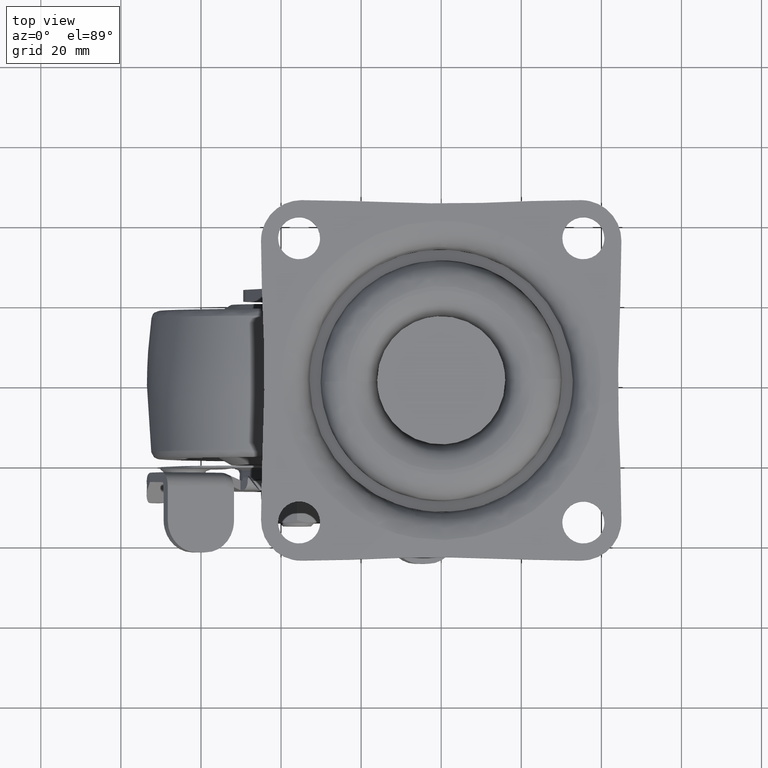
[diagram: clean part render]
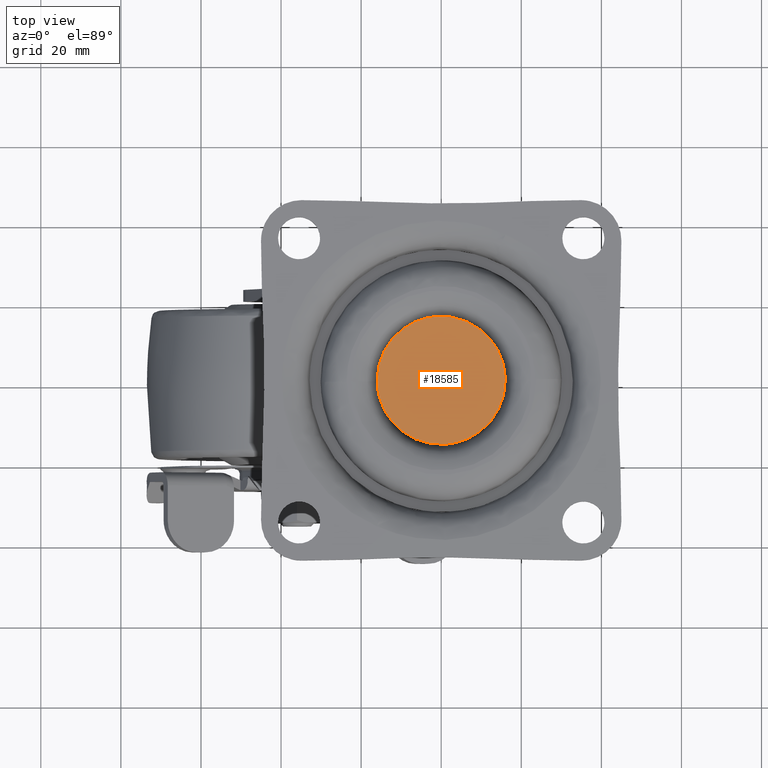
[diagram: same view with one face highlighted and labeled with its STEP entity id]
A machine part, top view. The second image highlights one B-rep face of the part: STEP entity #18585.
In plain terms, the highlighted face is a freeform B-spline surface patch.
Its self-contained STEP definition (entity closure, byte-faithful):
#18514=CARTESIAN_POINT('',(-17.598399937977788,-17.598006196946990,0.0));
#18515=CARTESIAN_POINT('',(17.598400796284679,-17.598006196946990,0.0));
#18516=CARTESIAN_POINT('',(-17.598399937977788,17.598005624742399,0.0));
#18517=CARTESIAN_POINT('',(17.598400796284679,17.598005624742399,0.0));
#18518=B_SPLINE_SURFACE_WITH_KNOTS('',1,1,((#18514,#18516),(#18515,#18517)),.UNSPECIFIED.,.F.,.F.,.U.,(2,2),(2,2),(0.0,35.196800734262467),(0.0,35.196011821689382),.UNSPECIFIED.);
#18519=CARTESIAN_POINT('',(0.976767278709986,-15.970157346850200,-4.246603E-014));
#18520=VERTEX_POINT('',#18519);
#18521=CARTESIAN_POINT('',(-16.0,0.0,0.0));
#18522=VERTEX_POINT('',#18521);
#18523=CARTESIAN_POINT('',(0.976767278709986,-15.970157346850208,-4.246603E-014));
#18524=CARTESIAN_POINT('',(0.488839522739965,-15.999999999997291,-4.185577E-014));
#18525=CARTESIAN_POINT('',(-1.613808E-013,-15.999999999997341,-4.120705E-014));
#18526=CARTESIAN_POINT('',(-16.000000000000082,-15.999999999998712,-1.997404E-014));
#18527=CARTESIAN_POINT('',(-16.0,0.0,0.0));
#18535=(BOUNDED_CURVE()B_SPLINE_CURVE(2,(#18523,#18524,#18525,#18526,#18527),.UNSPECIFIED.,.F.,.U.)B_SPLINE_CURVE_WITH_KNOTS((3,2,3),(0.739333063304002,0.750000000000000,1.0),.UNSPECIFIED.)CURVE()GEOMETRIC_REPRESENTATION_ITEM()RATIONAL_B_SPLINE_CURVE((0.976072258268473,0.987502906304919,1.0,0.707106781186548,1.0))REPRESENTATION_ITEM(''));
#18536=EDGE_CURVE('',#18520,#18522,#18535,.T.);
#18537=ORIENTED_EDGE('',*,*,#18536,.F.);
#18538=CARTESIAN_POINT('',(16.0,0.0,0.0));
#18539=VERTEX_POINT('',#18538);
#18540=CARTESIAN_POINT('',(16.0,0.0,0.0));
#18541=CARTESIAN_POINT('',(15.999999999999924,-15.051305902629883,-2.123302E-014));
#18542=CARTESIAN_POINT('',(0.976767278709986,-15.970157346850208,-4.246603E-014));
#18550=(BOUNDED_CURVE()B_SPLINE_CURVE(2,(#18540,#18541,#18542),.UNSPECIFIED.,.F.,.U.)B_SPLINE_CURVE_WITH_KNOTS((3,3),(0.500000000000000,0.739333063304002),.UNSPECIFIED.)CURVE()GEOMETRIC_REPRESENTATION_ITEM()RATIONAL_B_SPLINE_CURVE((1.0,0.719603874881628,0.976072258268473))REPRESENTATION_ITEM(''));
#18551=EDGE_CURVE('',#18539,#18520,#18550,.T.);
#18552=ORIENTED_EDGE('',*,*,#18551,.F.);
#18553=CARTESIAN_POINT('',(-0.976767278709985,15.970157346850209,-4.246603E-014));
#18554=VERTEX_POINT('',#18553);
#18555=CARTESIAN_POINT('',(-0.976767278709985,15.970157346850208,-4.246603E-014));
#18556=CARTESIAN_POINT('',(-0.488839522739965,15.999999999997300,-4.185577E-014));
#18557=CARTESIAN_POINT('',(1.623504E-013,15.999999999997341,-4.120705E-014));
#18558=CARTESIAN_POINT('',(16.000000000000082,15.999999999998712,-1.997404E-014));
#18559=CARTESIAN_POINT('',(16.0,0.0,0.0));
#18567=(BOUNDED_CURVE()B_SPLINE_CURVE(2,(#18555,#18556,#18557,#18558,#18559),.UNSPECIFIED.,.F.,.U.)B_SPLINE_CURVE_WITH_KNOTS((3,2,3),(0.239333063304002,0.250000000000000,0.500000000000000),.UNSPECIFIED.)CURVE()GEOMETRIC_REPRESENTATION_ITEM()RATIONAL_B_SPLINE_CURVE((0.976072258268473,0.987502906304919,1.0,0.707106781186548,1.0))REPRESENTATION_ITEM(''));
#18568=EDGE_CURVE('',#18554,#18539,#18567,.T.);
#18569=ORIENTED_EDGE('',*,*,#18568,.F.);
#18570=CARTESIAN_POINT('',(-16.0,0.0,0.0));
#18571=CARTESIAN_POINT('',(-15.999999999999924,15.051305902629883,-2.123302E-014));
#18572=CARTESIAN_POINT('',(-0.976767278709985,15.970157346850208,-4.246603E-014));
#18580=(BOUNDED_CURVE()B_SPLINE_CURVE(2,(#18570,#18571,#18572),.UNSPECIFIED.,.F.,.U.)B_SPLINE_CURVE_WITH_KNOTS((3,3),(0.0,0.239333063304002),.UNSPECIFIED.)CURVE()GEOMETRIC_REPRESENTATION_ITEM()RATIONAL_B_SPLINE_CURVE((1.0,0.719603874881628,0.976072258268473))REPRESENTATION_ITEM(''));
#18581=EDGE_CURVE('',#18522,#18554,#18580,.T.);
#18582=ORIENTED_EDGE('',*,*,#18581,.F.);
#18583=EDGE_LOOP('',(#18537,#18552,#18569,#18582));
#18584=FACE_OUTER_BOUND('',#18583,.T.);
#18585=ADVANCED_FACE('',(#18584),#18518,.T.);